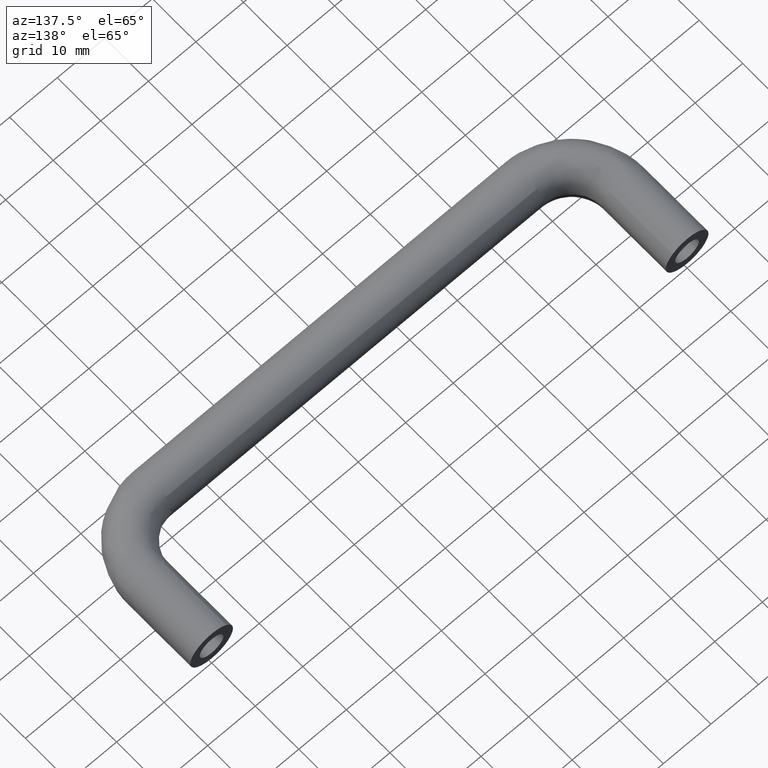
[diagram: clean part render]
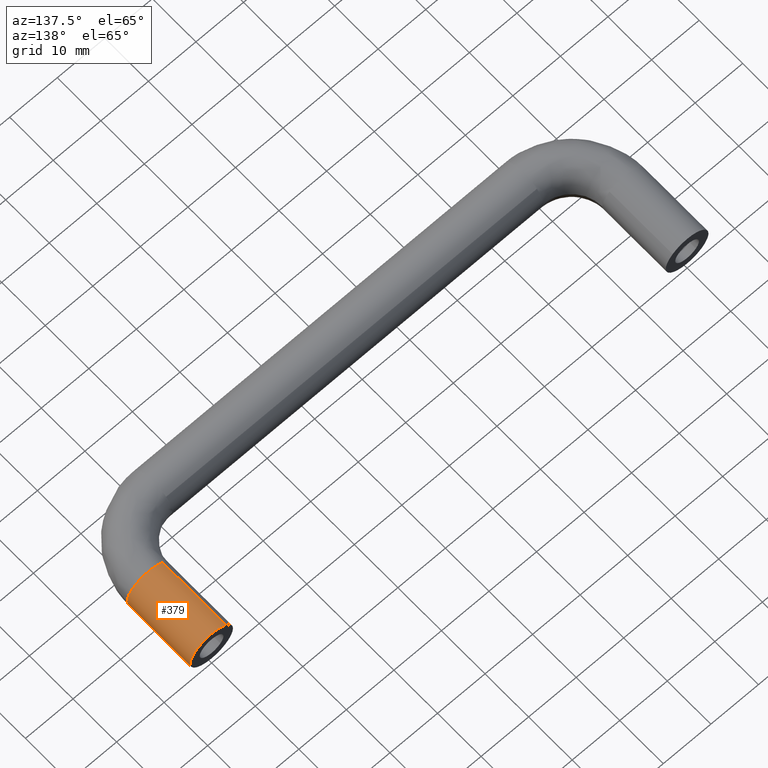
[diagram: same view with one face highlighted and labeled with its STEP entity id]
A machine part, auxiliary view. The second image highlights one B-rep face of the part: STEP entity #379.
In plain terms, the highlighted face is a freeform B-spline surface patch.
Its self-contained STEP definition (entity closure, byte-faithful):
#219=CARTESIAN_POINT('',(96.959843823615188,1.237205E-014,3.317748237039400));
#220=VERTEX_POINT('',#219);
#232=CARTESIAN_POINT('',(99.999998687811654,1.214306E-014,4.499999999999809));
#233=VERTEX_POINT('',#232);
#234=CARTESIAN_POINT('',(99.999998687811654,1.214306E-014,4.499999999999809));
#235=CARTESIAN_POINT('',(99.617525885395324,1.217187E-014,4.500075041197284));
#236=CARTESIAN_POINT('',(98.817815686393558,1.223211E-014,4.397519393290938));
#237=CARTESIAN_POINT('',(97.780503676525413,1.231024E-014,3.966184781634548));
#238=CARTESIAN_POINT('',(97.190543817163402,1.235467E-014,3.529175196789555));
#239=CARTESIAN_POINT('',(96.959843823615188,1.237205E-014,3.317748237039400));
#240=B_SPLINE_CURVE_WITH_KNOTS('',3,(#234,#235,#236,#237,#238,#239),.UNSPECIFIED.,.F.,.U.,(4,1,1,4),(0.000000026931611,1.147424852950022,2.399156610787036,3.337959714144721),.UNSPECIFIED.);
#241=EDGE_CURVE('',#233,#220,#240,.T.);
#243=CARTESIAN_POINT('',(104.500000000000000,1.214306E-014,0.0));
#244=VERTEX_POINT('',#243);
#245=CARTESIAN_POINT('',(104.500000000000000,1.214306E-014,0.0));
#246=CARTESIAN_POINT('',(104.500005702904800,1.214306E-014,0.239297003573044));
#247=CARTESIAN_POINT('',(104.454422331558210,1.214306E-014,0.809945705975825));
#248=CARTESIAN_POINT('',(104.227220658157800,1.214306E-014,1.631022254489892));
#249=CARTESIAN_POINT('',(103.865421012793210,1.214306E-014,2.338813801240491));
#250=CARTESIAN_POINT('',(103.422479919237900,1.214306E-014,2.951644701083499));
#251=CARTESIAN_POINT('',(102.964730917544200,1.214306E-014,3.409401513575732));
#252=CARTESIAN_POINT('',(102.339974489672400,1.214306E-014,3.866840512970537));
#253=CARTESIAN_POINT('',(101.697243297506900,1.214306E-014,4.195339898115555));
#254=CARTESIAN_POINT('',(100.865138185203800,1.214306E-014,4.442151300596648));
#255=CARTESIAN_POINT('',(100.312926530950800,1.214306E-014,4.500049994755164));
#256=CARTESIAN_POINT('',(99.999998687811654,1.214306E-014,4.499999999999809));
#257=B_SPLINE_CURVE_WITH_KNOTS('',3,(#245,#246,#247,#248,#249,#250,#251,#252,#253,#254,#255,#256),.UNSPECIFIED.,.F.,.U.,(4,1,1,1,1,1,1,1,1,4),(0.000000129969513,0.717900203571959,1.711932669526525,2.540295180777065,3.092528891038597,3.976097927741297,4.473095306121500,5.411920948997645,6.129847600345042,7.068628562522963),.UNSPECIFIED.);
#258=EDGE_CURVE('',#244,#233,#257,.T.);
#260=CARTESIAN_POINT('',(103.040156176384800,1.176143E-014,-3.317748237039417));
#261=VERTEX_POINT('',#260);
#262=CARTESIAN_POINT('',(103.040156176384800,1.176143E-014,-3.317748237039417));
#263=CARTESIAN_POINT('',(103.240715710075800,1.178256E-014,-3.133977998519769));
#264=CARTESIAN_POINT('',(103.674125757285400,1.183733E-014,-2.657836745705868));
#265=CARTESIAN_POINT('',(104.125198488303890,1.192699E-014,-1.878381837246315));
#266=CARTESIAN_POINT('',(104.429398235838800,1.203355E-014,-0.952064157043392));
#267=CARTESIAN_POINT('',(104.500078069223210,1.210283E-014,-0.349754409895890));
#268=CARTESIAN_POINT('',(104.500000000000000,1.214306E-014,0.0));
#269=B_SPLINE_CURVE_WITH_KNOTS('',3,(#262,#263,#264,#265,#266,#267,#268),.UNSPECIFIED.,.F.,.U.,(4,1,1,1,4),(0.000000036381754,0.816082026561460,1.923606279414452,2.681415740279377,3.730667463817064),.UNSPECIFIED.);
#270=EDGE_CURVE('',#261,#244,#269,.T.);
#307=CARTESIAN_POINT('',(96.959844065729527,-14.862500000061759,3.317748015645557));
#308=CARTESIAN_POINT('',(100.277592081375090,-14.862500000061754,6.357903949916027));
#309=CARTESIAN_POINT('',(103.317748015645610,-14.862500000061759,3.040155934270470));
#310=CARTESIAN_POINT('',(106.357903949916040,-14.862500000061754,-0.277592081375087));
#311=CARTESIAN_POINT('',(103.040155934270500,-14.862500000061759,-3.317748015645557));
#312=CARTESIAN_POINT('',(96.959844065729527,0.371562500001557,3.317748015645557));
#313=CARTESIAN_POINT('',(100.277592081375090,0.371562500001557,6.357903949916027));
#314=CARTESIAN_POINT('',(103.317748015645610,0.371562500001557,3.040155934270470));
#315=CARTESIAN_POINT('',(106.357903949916040,0.371562500001558,-0.277592081375087));
#316=CARTESIAN_POINT('',(103.040155934270500,0.371562500001558,-3.317748015645557));
#324=(BOUNDED_SURFACE()B_SPLINE_SURFACE(2,1,((#307,#312),(#308,#313),(#309,#314),(#310,#315),(#311,#316)),.UNSPECIFIED.,.F.,.F.,.U.)B_SPLINE_SURFACE_WITH_KNOTS((3,2,3),(2,2),(0.0,7.455844122715736,14.911688245431471),(0.0,15.234062500063320),.UNSPECIFIED.)GEOMETRIC_REPRESENTATION_ITEM()RATIONAL_B_SPLINE_SURFACE(((1.0,1.0),(0.707106781186548,0.707106781186548),(1.0,1.0),(0.707106781186548,0.707106781186548),(1.0,1.0)))REPRESENTATION_ITEM('')SURFACE());
#325=CARTESIAN_POINT('',(99.999998687781130,-14.499984633947181,4.499999999999809));
#326=VERTEX_POINT('',#325);
#327=CARTESIAN_POINT('',(96.959843823350297,-14.499995014940810,3.317748236800339));
#328=VERTEX_POINT('',#327);
#329=CARTESIAN_POINT('',(99.999998687781130,-14.499984633947181,4.499999999999809));
#330=CARTESIAN_POINT('',(99.617512702995782,-14.499985939993980,4.500105322239778));
#331=CARTESIAN_POINT('',(99.026494336592208,-14.499987958101091,4.424154081354201));
#332=CARTESIAN_POINT('',(97.969307955216195,-14.499991567997609,4.068581990265596));
#333=CARTESIAN_POINT('',(97.344154011428785,-14.499993702665080,3.670456101321176));
#334=CARTESIAN_POINT('',(96.959843823350297,-14.499995014940810,3.317748236800339));
#335=B_SPLINE_CURVE_WITH_KNOTS('',3,(#329,#330,#331,#332,#333,#334),.UNSPECIFIED.,.F.,.U.,(4,1,1,4),(0.000000026917966,1.147424853061990,1.773280584067730,3.337959714490046),.UNSPECIFIED.);
#336=EDGE_CURVE('',#326,#328,#335,.T.);
#337=ORIENTED_EDGE('',*,*,#336,.F.);
#338=CARTESIAN_POINT('',(104.499999999939110,-14.499969267825151,-5.510729E-016));
#339=VERTEX_POINT('',#338);
#340=CARTESIAN_POINT('',(104.499999999939110,-14.499969267825151,-5.510729E-016));
#341=CARTESIAN_POINT('',(104.500049509191600,-14.499969267656100,0.331339114684541));
#342=CARTESIAN_POINT('',(104.420401403604300,-14.499969539629900,1.049250408238249));
#343=CARTESIAN_POINT('',(104.096069895255400,-14.499970647122369,1.938526602702762));
#344=CARTESIAN_POINT('',(103.582843005719990,-14.499972399634560,2.771385163512822));
#345=CARTESIAN_POINT('',(102.926515273608000,-14.499974640792111,3.478019847988043));
#346=CARTESIAN_POINT('',(102.086964148026690,-14.499977507601169,4.024118073972804));
#347=CARTESIAN_POINT('',(101.104382903060700,-14.499980862814430,4.403123442691755));
#348=CARTESIAN_POINT('',(100.423397291260000,-14.499983188171051,4.500174550174743));
#349=CARTESIAN_POINT('',(99.999998687781130,-14.499984633947181,4.499999999999809));
#350=B_SPLINE_CURVE_WITH_KNOTS('',3,(#340,#341,#342,#343,#344,#345,#346,#347,#348,#349),.UNSPECIFIED.,.F.,.U.,(4,1,1,1,1,1,1,4),(0.000000129973041,0.994023880457754,2.153731769098494,2.816411401917423,3.920848825400633,5.025345881804938,5.798488213860878,7.068628562518700),.UNSPECIFIED.);
#351=EDGE_CURVE('',#339,#326,#350,.T.);
#352=ORIENTED_EDGE('',*,*,#351,.F.);
#353=CARTESIAN_POINT('',(103.040156176635800,-14.499974252948469,-3.317748236785135));
#354=VERTEX_POINT('',#353);
#355=CARTESIAN_POINT('',(103.040156176635800,-14.499974252948469,-3.317748236785135));
#356=CARTESIAN_POINT('',(103.427244587043600,-14.499972931138551,-2.963569076883203));
#357=CARTESIAN_POINT('',(103.978947276837900,-14.499971047198841,-2.243030501570612));
#358=CARTESIAN_POINT('',(104.415771331009490,-14.499969555506260,-1.068645083680722));
#359=CARTESIAN_POINT('',(104.500071920447790,-14.499969267601189,-0.349752460537472));
#360=CARTESIAN_POINT('',(104.499999999939110,-14.499969267825151,-5.510729E-016));
#361=B_SPLINE_CURVE_WITH_KNOTS('',3,(#355,#356,#357,#358,#359,#360),.UNSPECIFIED.,.F.,.U.,(4,1,1,4),(0.000000036382732,1.573888121349386,2.681415740000516,3.730667463429062),.UNSPECIFIED.);
#362=EDGE_CURVE('',#354,#339,#361,.T.);
#363=ORIENTED_EDGE('',*,*,#362,.F.);
#364=CARTESIAN_POINT('',(103.040156176635800,-14.499974252948469,-3.317748236785135));
#365=CARTESIAN_POINT('',(103.040156176384800,1.176143E-014,-3.317748237039417));
#366=QUASI_UNIFORM_CURVE('',1,(#364,#365),.UNSPECIFIED.,.F.,.U.);
#367=EDGE_CURVE('',#354,#261,#366,.T.);
#368=ORIENTED_EDGE('',*,*,#367,.T.);
#369=ORIENTED_EDGE('',*,*,#270,.T.);
#370=ORIENTED_EDGE('',*,*,#258,.T.);
#371=ORIENTED_EDGE('',*,*,#241,.T.);
#372=CARTESIAN_POINT('',(96.959843823350297,-14.499995014940810,3.317748236800339));
#373=CARTESIAN_POINT('',(96.959843823615188,1.237205E-014,3.317748237039400));
#374=QUASI_UNIFORM_CURVE('',1,(#372,#373),.UNSPECIFIED.,.F.,.U.);
#375=EDGE_CURVE('',#328,#220,#374,.T.);
#376=ORIENTED_EDGE('',*,*,#375,.F.);
#377=EDGE_LOOP('',(#337,#352,#363,#368,#369,#370,#371,#376));
#378=FACE_OUTER_BOUND('',#377,.T.);
#379=ADVANCED_FACE('',(#378),#324,.T.);